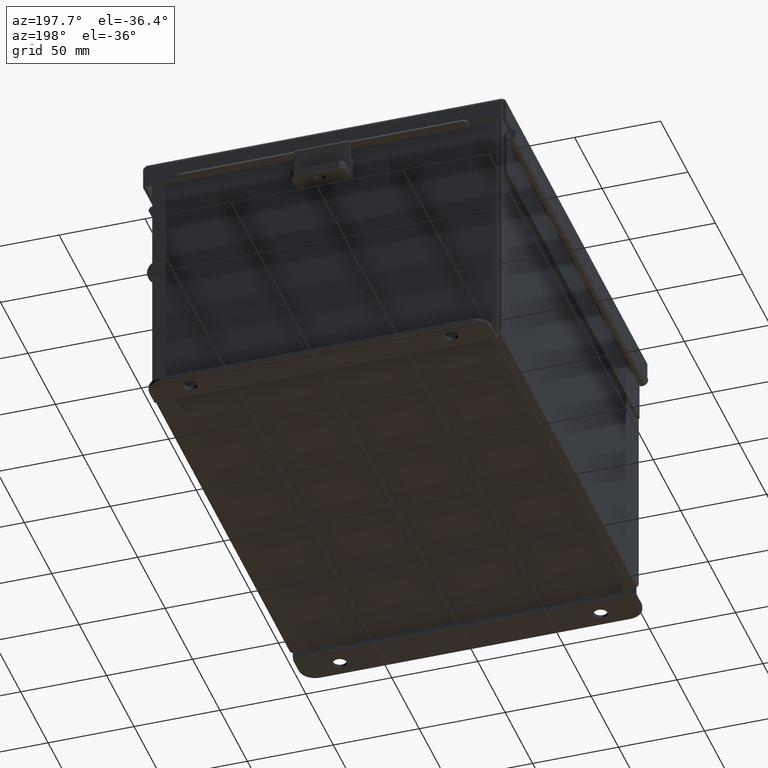
[diagram: clean part render]
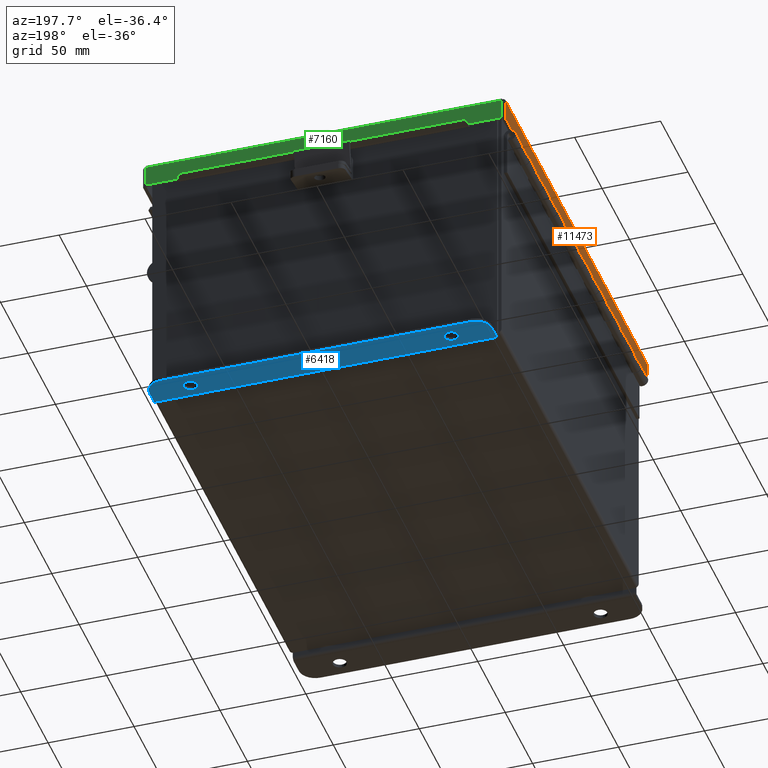
[diagram: same view with three faces highlighted in distinct colors, each labeled with its STEP entity id]
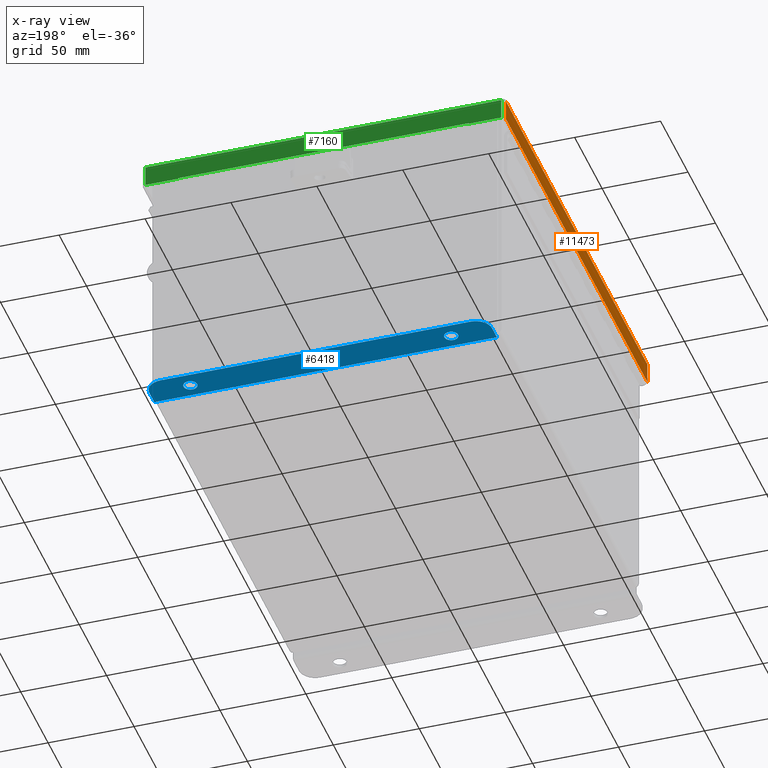
[diagram: x-ray of the same camera — body ghosted, the three highlighted faces saturated]
A machine part, auxiliary view with three faces highlighted in distinct colors.
The next image is the same camera in x-ray (body ghosted, the three faces saturated) — at least one of them is partly hidden behind the body in this view.
Their STEP definitions:

[orange] entity #11473 — the highlighted planar face has unit normal (1, -0, 0).
#29 = EDGE_CURVE ( 'NONE', #16035, #10244, #15911, .T. ) ;
#429 = CARTESIAN_POINT ( 'NONE',  ( 4.156250000000000900, -5.156250000000001800, 0.01299999999999986400 ) ) ;
#434 = ORIENTED_EDGE ( 'NONE', *, *, #843, .F. ) ;
#843 = EDGE_CURVE ( 'NONE', #4088, #10244, #12886, .T. ) ;
#2038 = CARTESIAN_POINT ( 'NONE',  ( 4.156250000000000900, -5.074478932188135600, 0.01299999999999958700 ) ) ;
#2225 = DIRECTION ( 'NONE',  ( 3.363654414526078100E-015, 0.0000000000000000000, 1.000000000000000000 ) ) ;
#2730 = VECTOR ( 'NONE', #11133, 39.37007874015748100 ) ;
#3029 = CARTESIAN_POINT ( 'NONE',  ( 4.156250000000002700, 5.074478932188133800, 0.4872999999999997300 ) ) ;
#3813 = DIRECTION ( 'NONE',  ( 3.363654414526078100E-015, 0.0000000000000000000, 1.000000000000000000 ) ) ;
#4088 = VERTEX_POINT ( 'NONE', #2038 ) ;
#4189 = VECTOR ( 'NONE', #3813, 39.37007874015748100 ) ;
#4414 = CARTESIAN_POINT ( 'NONE',  ( 4.156250000000002700, -5.074478932188135600, 0.4872999999999997300 ) ) ;
#5393 = ORIENTED_EDGE ( 'NONE', *, *, #5585, .F. ) ;
#5585 = EDGE_CURVE ( 'NONE', #8801, #4088, #10309, .T. ) ;
#6098 = ORIENTED_EDGE ( 'NONE', *, *, #29, .T. ) ;
#6452 = CARTESIAN_POINT ( 'NONE',  ( 4.156250000000002700, 0.0000000000000000000, 0.4872999999999997300 ) ) ;
#6915 = VECTOR ( 'NONE', #9758, 39.37007874015748100 ) ;
#7620 = DIRECTION ( 'NONE',  ( 0.0000000000000000000, -1.000000000000000000, 0.0000000000000000000 ) ) ;
#7971 = LINE ( 'NONE', #8956, #4189 ) ;
#8801 = VERTEX_POINT ( 'NONE', #15963 ) ;
#8956 = CARTESIAN_POINT ( 'NONE',  ( 4.156250000000000900, 5.074478932188133800, -1.424100231638560100E-014 ) ) ;
#9758 = DIRECTION ( 'NONE',  ( 1.782107648718159600E-031, -1.000000000000000000, 5.298129442257965400E-017 ) ) ;
#9843 = DIRECTION ( 'NONE',  ( -1.000000000000000000, 0.0000000000000000000, 3.363654414526078100E-015 ) ) ;
#10244 = VERTEX_POINT ( 'NONE', #4414 ) ;
#10309 = LINE ( 'NONE', #429, #6915 ) ;
#11133 = DIRECTION ( 'NONE',  ( 3.363654414526078100E-015, -0.0000000000000000000, 1.000000000000000000 ) ) ;
#11231 = CARTESIAN_POINT ( 'NONE',  ( 4.156250000000000900, -5.074478932188135600, -2.512649847650986200E-016 ) ) ;
#11417 = EDGE_LOOP ( 'NONE', ( #5393, #13329, #6098, #434 ) ) ;
#11473 = ADVANCED_FACE ( 'NONE', ( #15592 ), #13627, .F. ) ;
#11805 = AXIS2_PLACEMENT_3D ( 'NONE', #14947, #9843, #2225 ) ;
#12529 = VECTOR ( 'NONE', #7620, 39.37007874015748100 ) ;
#12886 = LINE ( 'NONE', #11231, #2730 ) ;
#13329 = ORIENTED_EDGE ( 'NONE', *, *, #14795, .T. ) ;
#13627 = PLANE ( 'NONE',  #11805 ) ;
#14795 = EDGE_CURVE ( 'NONE', #8801, #16035, #7971, .T. ) ;
#14947 = CARTESIAN_POINT ( 'NONE',  ( 4.156250000000000900, 0.0000000000000000000, -1.424100231638560100E-014 ) ) ;
#15592 = FACE_OUTER_BOUND ( 'NONE', #11417, .T. ) ;
#15911 = LINE ( 'NONE', #6452, #12529 ) ;
#15963 = CARTESIAN_POINT ( 'NONE',  ( 4.156250000000000900, 5.074478932188133800, 0.01299999999999932100 ) ) ;
#16035 = VERTEX_POINT ( 'NONE', #3029 ) ;

[blue] entity #6418 — the highlighted planar face has unit normal (0, 0, 1).
#194 = CARTESIAN_POINT ( 'NONE',  ( -2.987799999999999600, 0.3627999999999997300, -3.187000000000001200 ) ) ;
#325 = CARTESIAN_POINT ( 'NONE',  ( 3.550299999999999600, 0.3627999999999997300, -3.187000000000001200 ) ) ;
#339 = EDGE_CURVE ( 'NONE', #7031, #9269, #2365, .T. ) ;
#504 = LINE ( 'NONE', #1105, #10279 ) ;
#1105 = CARTESIAN_POINT ( 'NONE',  ( -3.925299999999999600, -1.092739197465705300E-014, -3.187000000000000300 ) ) ;
#1251 = EDGE_CURVE ( 'NONE', #13017, #2661, #504, .T. ) ;
#1504 = DIRECTION ( 'NONE',  ( 0.0000000000000000000, 1.000000000000000000, -3.502369222646487000E-015 ) ) ;
#1622 = ORIENTED_EDGE ( 'NONE', *, *, #14194, .F. ) ;
#1640 = ORIENTED_EDGE ( 'NONE', *, *, #3123, .T. ) ;
#1820 = ORIENTED_EDGE ( 'NONE', *, *, #16431, .F. ) ;
#1910 = DIRECTION ( 'NONE',  ( 0.0000000000000000000, -1.000000000000000000, 3.702694488566362300E-015 ) ) ;
#2000 = CARTESIAN_POINT ( 'NONE',  ( -2.987799999999999600, 0.2067999999999996000, -3.187000000000000700 ) ) ;
#2093 = CIRCLE ( 'NONE', #8709, 0.3750000000000000600 ) ;
#2134 = EDGE_CURVE ( 'NONE', #13017, #6529, #6375, .T. ) ;
#2174 = EDGE_LOOP ( 'NONE', ( #2260, #3839, #1640, #13014, #4039, #11245 ) ) ;
#2260 = ORIENTED_EDGE ( 'NONE', *, *, #339, .T. ) ;
#2365 = LINE ( 'NONE', #4119, #15897 ) ;
#2661 = VERTEX_POINT ( 'NONE', #13781 ) ;
#2779 = CIRCLE ( 'NONE', #9298, 0.3750000000000000600 ) ;
#2813 = CIRCLE ( 'NONE', #3022, 0.1560000000000001900 ) ;
#2850 = VERTEX_POINT ( 'NONE', #7217 ) ;
#2999 = VECTOR ( 'NONE', #8866, 39.37007874015748100 ) ;
#3022 = AXIS2_PLACEMENT_3D ( 'NONE', #194, #9132, #1504 ) ;
#3123 = EDGE_CURVE ( 'NONE', #4719, #6529, #10163, .T. ) ;
#3778 = VECTOR ( 'NONE', #1910, 39.37007874015748100 ) ;
#3839 = ORIENTED_EDGE ( 'NONE', *, *, #6142, .T. ) ;
#4039 = ORIENTED_EDGE ( 'NONE', *, *, #1251, .T. ) ;
#4059 = CARTESIAN_POINT ( 'NONE',  ( -3.925299999999999600, 0.01300000000000010700, -3.187000000000000300 ) ) ;
#4119 = CARTESIAN_POINT ( 'NONE',  ( 0.0000000000000000000, 0.7378000000000000100, -3.187000000000002900 ) ) ;
#4370 = DIRECTION ( 'NONE',  ( 0.0000000000000000000, -3.702694488566362300E-015, -1.000000000000000000 ) ) ;
#4719 = VERTEX_POINT ( 'NONE', #15569 ) ;
#4826 = CARTESIAN_POINT ( 'NONE',  ( 2.987800000000000500, 0.3627999999999997300, -3.187000000000001200 ) ) ;
#5032 = CIRCLE ( 'NONE', #12682, 0.1560000000000001900 ) ;
#5181 = DIRECTION ( 'NONE',  ( 0.0000000000000000000, -1.000000000000000000, 3.702694488566362300E-015 ) ) ;
#5492 = DIRECTION ( 'NONE',  ( 0.0000000000000000000, -3.702694488566362300E-015, -1.000000000000000000 ) ) ;
#5737 = CARTESIAN_POINT ( 'NONE',  ( 0.0000000000000000000, -1.092739197465705300E-014, -3.187000000000000300 ) ) ;
#5944 = FACE_BOUND ( 'NONE', #7689, .T. ) ;
#6111 = DIRECTION ( 'NONE',  ( 0.0000000000000000000, 1.000000000000000000, -3.502369222646487000E-015 ) ) ;
#6142 = EDGE_CURVE ( 'NONE', #9269, #4719, #2779, .T. ) ;
#6250 = EDGE_CURVE ( 'NONE', #2850, #14887, #14764, .T. ) ;
#6375 = LINE ( 'NONE', #7378, #2999 ) ;
#6418 = ADVANCED_FACE ( 'NONE', ( #16133, #5944, #13127 ), #15355, .F. ) ;
#6529 = VERTEX_POINT ( 'NONE', #14456 ) ;
#6772 = CARTESIAN_POINT ( 'NONE',  ( -2.987799999999999600, 0.5187999999999999300, -3.187000000000001600 ) ) ;
#6796 = DIRECTION ( 'NONE',  ( 0.0000000000000000000, 1.000000000000000000, -3.502369222646487000E-015 ) ) ;
#7031 = VERTEX_POINT ( 'NONE', #15226 ) ;
#7138 = DIRECTION ( 'NONE',  ( -0.0000000000000000000, -3.702694488566362300E-015, -1.000000000000000000 ) ) ;
#7217 = CARTESIAN_POINT ( 'NONE',  ( 2.987800000000000500, 0.5187999999999999300, -3.187000000000001600 ) ) ;
#7336 = VERTEX_POINT ( 'NONE', #6772 ) ;
#7378 = CARTESIAN_POINT ( 'NONE',  ( 3.925299999999999600, 0.01300000000000010700, -3.187000000000000300 ) ) ;
#7689 = EDGE_LOOP ( 'NONE', ( #9620, #14201 ) ) ;
#7920 = DIRECTION ( 'NONE',  ( 0.0000000000000000000, -1.000000000000000000, 4.370956789862820400E-015 ) ) ;
#8370 = DIRECTION ( 'NONE',  ( 0.0000000000000000000, 3.702694488566362300E-015, 1.000000000000000000 ) ) ;
#8709 = AXIS2_PLACEMENT_3D ( 'NONE', #14784, #7138, #16047 ) ;
#8866 = DIRECTION ( 'NONE',  ( 1.000000000000000000, -0.0000000000000000000, -0.0000000000000000000 ) ) ;
#8889 = DIRECTION ( 'NONE',  ( -0.0000000000000000000, -3.702694488566362300E-015, -1.000000000000000000 ) ) ;
#9095 = VERTEX_POINT ( 'NONE', #2000 ) ;
#9102 = CARTESIAN_POINT ( 'NONE',  ( 2.987800000000000500, 0.3627999999999997300, -3.187000000000001200 ) ) ;
#9106 = EDGE_CURVE ( 'NONE', #2661, #7031, #2093, .T. ) ;
#9132 = DIRECTION ( 'NONE',  ( 0.0000000000000000000, -3.702694488566362300E-015, -1.000000000000000000 ) ) ;
#9269 = VERTEX_POINT ( 'NONE', #15062 ) ;
#9298 = AXIS2_PLACEMENT_3D ( 'NONE', #325, #8889, #7920 ) ;
#9620 = ORIENTED_EDGE ( 'NONE', *, *, #6250, .F. ) ;
#9845 = AXIS2_PLACEMENT_3D ( 'NONE', #5737, #8370, #5181 ) ;
#10163 = LINE ( 'NONE', #16287, #3778 ) ;
#10202 = AXIS2_PLACEMENT_3D ( 'NONE', #13140, #5492, #14438 ) ;
#10279 = VECTOR ( 'NONE', #16295, 39.37007874015748100 ) ;
#11245 = ORIENTED_EDGE ( 'NONE', *, *, #9106, .T. ) ;
#11509 = EDGE_CURVE ( 'NONE', #14887, #2850, #5032, .T. ) ;
#12682 = AXIS2_PLACEMENT_3D ( 'NONE', #4826, #13748, #6111 ) ;
#13014 = ORIENTED_EDGE ( 'NONE', *, *, #2134, .F. ) ;
#13017 = VERTEX_POINT ( 'NONE', #4059 ) ;
#13127 = FACE_OUTER_BOUND ( 'NONE', #2174, .T. ) ;
#13140 = CARTESIAN_POINT ( 'NONE',  ( -2.987799999999999600, 0.3627999999999997300, -3.187000000000001200 ) ) ;
#13313 = CIRCLE ( 'NONE', #10202, 0.1560000000000001900 ) ;
#13748 = DIRECTION ( 'NONE',  ( 0.0000000000000000000, -3.702694488566362300E-015, -1.000000000000000000 ) ) ;
#13781 = CARTESIAN_POINT ( 'NONE',  ( -3.925299999999999600, 0.3627999999999997300, -3.187000000000001200 ) ) ;
#14194 = EDGE_CURVE ( 'NONE', #9095, #7336, #2813, .T. ) ;
#14201 = ORIENTED_EDGE ( 'NONE', *, *, #11509, .F. ) ;
#14238 = CARTESIAN_POINT ( 'NONE',  ( 2.987800000000000500, 0.2067999999999996000, -3.187000000000000700 ) ) ;
#14437 = AXIS2_PLACEMENT_3D ( 'NONE', #9102, #4370, #6796 ) ;
#14438 = DIRECTION ( 'NONE',  ( 0.0000000000000000000, 1.000000000000000000, -3.502369222646487000E-015 ) ) ;
#14456 = CARTESIAN_POINT ( 'NONE',  ( 3.925299999999999600, 0.01300000000000010700, -3.187000000000000300 ) ) ;
#14764 = CIRCLE ( 'NONE', #14437, 0.1560000000000001900 ) ;
#14784 = CARTESIAN_POINT ( 'NONE',  ( -3.550299999999999600, 0.3627999999999997300, -3.187000000000001200 ) ) ;
#14887 = VERTEX_POINT ( 'NONE', #14238 ) ;
#15062 = CARTESIAN_POINT ( 'NONE',  ( 3.550299999999999600, 0.7378000000000000100, -3.187000000000002900 ) ) ;
#15226 = CARTESIAN_POINT ( 'NONE',  ( -3.550299999999999600, 0.7378000000000000100, -3.187000000000002900 ) ) ;
#15355 = PLANE ( 'NONE',  #9845 ) ;
#15569 = CARTESIAN_POINT ( 'NONE',  ( 3.925299999999999600, 0.3627999999999997300, -3.187000000000001200 ) ) ;
#15575 = EDGE_LOOP ( 'NONE', ( #1820, #1622 ) ) ;
#15897 = VECTOR ( 'NONE', #16321, 39.37007874015748100 ) ;
#16047 = DIRECTION ( 'NONE',  ( 0.0000000000000000000, -1.000000000000000000, 4.370956789862820400E-015 ) ) ;
#16133 = FACE_BOUND ( 'NONE', #15575, .T. ) ;
#16287 = CARTESIAN_POINT ( 'NONE',  ( 3.925299999999999600, -1.092739197465705300E-014, -3.187000000000000300 ) ) ;
#16295 = DIRECTION ( 'NONE',  ( 0.0000000000000000000, 1.000000000000000000, -3.702694488566362300E-015 ) ) ;
#16321 = DIRECTION ( 'NONE',  ( 1.000000000000000000, 0.0000000000000000000, -0.0000000000000000000 ) ) ;
#16431 = EDGE_CURVE ( 'NONE', #7336, #9095, #13313, .T. ) ;

[green] entity #7160 — the highlighted planar face has unit normal (-0, -1, -0).
#25 = VECTOR ( 'NONE', #2139, 39.37007874015748100 ) ;
#1294 = ORIENTED_EDGE ( 'NONE', *, *, #13919, .F. ) ;
#1543 = LINE ( 'NONE', #12334, #1947 ) ;
#1570 = DIRECTION ( 'NONE',  ( 1.000000000000000000, 0.0000000000000000000, 8.216084191471467500E-018 ) ) ;
#1832 = VERTEX_POINT ( 'NONE', #12845 ) ;
#1926 = CARTESIAN_POINT ( 'NONE',  ( -4.003697826504046900E-018, 5.156250000000000900, 0.4872999999999997900 ) ) ;
#1947 = VECTOR ( 'NONE', #5725, 39.37007874015748100 ) ;
#1983 = DIRECTION ( 'NONE',  ( -1.000000000000000000, -0.0000000000000000000, -0.0000000000000000000 ) ) ;
#2139 = DIRECTION ( 'NONE',  ( 0.0000000000000000000, 4.484872552701437000E-015, 1.000000000000000000 ) ) ;
#2414 = VECTOR ( 'NONE', #6513, 39.37007874015748100 ) ;
#2657 = CARTESIAN_POINT ( 'NONE',  ( 1.899979665427313000E-031, 5.156249999999999100, -2.338593775587836400E-014 ) ) ;
#2794 = LINE ( 'NONE', #11571, #2414 ) ;
#2891 = CARTESIAN_POINT ( 'NONE',  ( 3.324478932188136100, 5.156250000000000900, 0.4872999999999997900 ) ) ;
#3205 = DIRECTION ( 'NONE',  ( 1.000000000000000000, 0.0000000000000000000, 8.216084191471467500E-018 ) ) ;
#3466 = CARTESIAN_POINT ( 'NONE',  ( -3.324478932188134700, 5.156250000000000900, 0.4717115427318793700 ) ) ;
#3936 = DIRECTION ( 'NONE',  ( 0.0000000000000000000, -4.484872552701437000E-015, -1.000000000000000000 ) ) ;
#4215 = CARTESIAN_POINT ( 'NONE',  ( 4.074478932188135600, 5.156249999999999100, 0.01299999999999977400 ) ) ;
#4491 = CARTESIAN_POINT ( 'NONE',  ( 3.324478932188136100, 5.156250000000000900, 0.4717115427318793700 ) ) ;
#5040 = ORIENTED_EDGE ( 'NONE', *, *, #10558, .T. ) ;
#5271 = EDGE_CURVE ( 'NONE', #11275, #14664, #1543, .T. ) ;
#5725 = DIRECTION ( 'NONE',  ( -1.401985044024155600E-013, -7.009925220120777900E-014, -1.000000000000000000 ) ) ;
#6205 = CARTESIAN_POINT ( 'NONE',  ( 3.324478932188133800, 5.156250000000000900, 0.4717115427318793700 ) ) ;
#6322 = AXIS2_PLACEMENT_3D ( 'NONE', #2657, #11559, #3936 ) ;
#6390 = VECTOR ( 'NONE', #16165, 39.37007874015748100 ) ;
#6443 = ORIENTED_EDGE ( 'NONE', *, *, #13876, .T. ) ;
#6513 = DIRECTION ( 'NONE',  ( -0.0000000000000000000, 4.484872552701437000E-015, 1.000000000000000000 ) ) ;
#6519 = FACE_OUTER_BOUND ( 'NONE', #12230, .T. ) ;
#6531 = CARTESIAN_POINT ( 'NONE',  ( 4.156250000000000900, 5.156249999999999100, 0.01299999999999978100 ) ) ;
#6698 = CARTESIAN_POINT ( 'NONE',  ( -4.003697826504046900E-018, 5.156250000000000900, 0.4872999999999997900 ) ) ;
#6800 = LINE ( 'NONE', #14794, #25 ) ;
#6834 = VERTEX_POINT ( 'NONE', #9639 ) ;
#6897 = LINE ( 'NONE', #1926, #13260 ) ;
#7160 = ADVANCED_FACE ( 'NONE', ( #6519 ), #10296, .F. ) ;
#7276 = LINE ( 'NONE', #6698, #15262 ) ;
#7797 = DIRECTION ( 'NONE',  ( 1.000000000000000000, -3.684809048101456200E-032, 1.613820990588604100E-046 ) ) ;
#8162 = EDGE_CURVE ( 'NONE', #11275, #1832, #6897, .T. ) ;
#8538 = ORIENTED_EDGE ( 'NONE', *, *, #8162, .T. ) ;
#8543 = VERTEX_POINT ( 'NONE', #10449 ) ;
#9027 = ORIENTED_EDGE ( 'NONE', *, *, #9787, .F. ) ;
#9480 = LINE ( 'NONE', #4491, #11660 ) ;
#9639 = CARTESIAN_POINT ( 'NONE',  ( -4.074478932188134700, 5.156250000000000900, 0.4872999999999997300 ) ) ;
#9787 = EDGE_CURVE ( 'NONE', #14664, #10544, #9480, .T. ) ;
#9837 = ORIENTED_EDGE ( 'NONE', *, *, #5271, .F. ) ;
#9923 = ORIENTED_EDGE ( 'NONE', *, *, #12538, .F. ) ;
#10296 = PLANE ( 'NONE',  #6322 ) ;
#10449 = CARTESIAN_POINT ( 'NONE',  ( -4.074478932188135600, 5.156249999999999100, 0.01299999999999978100 ) ) ;
#10544 = VERTEX_POINT ( 'NONE', #15551 ) ;
#10558 = EDGE_CURVE ( 'NONE', #6834, #13801, #7276, .T. ) ;
#11275 = VERTEX_POINT ( 'NONE', #2891 ) ;
#11282 = VERTEX_POINT ( 'NONE', #4215 ) ;
#11559 = DIRECTION ( 'NONE',  ( -3.684809048101456200E-032, -1.000000000000000000, 4.484872552701437000E-015 ) ) ;
#11571 = CARTESIAN_POINT ( 'NONE',  ( 4.074478932188135600, 5.156249999999999100, -3.350199796867980800E-016 ) ) ;
#11660 = VECTOR ( 'NONE', #1983, 39.37007874015748100 ) ;
#12230 = EDGE_LOOP ( 'NONE', ( #9837, #8538, #14010, #9923, #6443, #5040, #1294, #9027 ) ) ;
#12334 = CARTESIAN_POINT ( 'NONE',  ( 3.324478932188136100, 5.156250000000001800, 0.4872999999999995700 ) ) ;
#12538 = EDGE_CURVE ( 'NONE', #8543, #11282, #13972, .T. ) ;
#12845 = CARTESIAN_POINT ( 'NONE',  ( 4.074478932188135600, 5.156250000000000900, 0.4872999999999997900 ) ) ;
#13172 = LINE ( 'NONE', #3466, #6390 ) ;
#13260 = VECTOR ( 'NONE', #3205, 39.37007874015748100 ) ;
#13561 = VECTOR ( 'NONE', #7797, 39.37007874015748100 ) ;
#13801 = VERTEX_POINT ( 'NONE', #15992 ) ;
#13876 = EDGE_CURVE ( 'NONE', #8543, #6834, #6800, .T. ) ;
#13919 = EDGE_CURVE ( 'NONE', #10544, #13801, #13172, .T. ) ;
#13972 = LINE ( 'NONE', #6531, #13561 ) ;
#14010 = ORIENTED_EDGE ( 'NONE', *, *, #15176, .F. ) ;
#14664 = VERTEX_POINT ( 'NONE', #6205 ) ;
#14794 = CARTESIAN_POINT ( 'NONE',  ( -4.074478932188134700, 5.156249999999999100, -2.338593775587836400E-014 ) ) ;
#15176 = EDGE_CURVE ( 'NONE', #11282, #1832, #2794, .T. ) ;
#15262 = VECTOR ( 'NONE', #1570, 39.37007874015748100 ) ;
#15551 = CARTESIAN_POINT ( 'NONE',  ( -3.324478932188134700, 5.156250000000000900, 0.4717115427318793700 ) ) ;
#15992 = CARTESIAN_POINT ( 'NONE',  ( -3.324478932188134300, 5.156250000000000900, 0.4872999999999997900 ) ) ;
#16165 = DIRECTION ( 'NONE',  ( 0.0000000000000000000, 7.009925220120717300E-014, 1.000000000000000000 ) ) ;